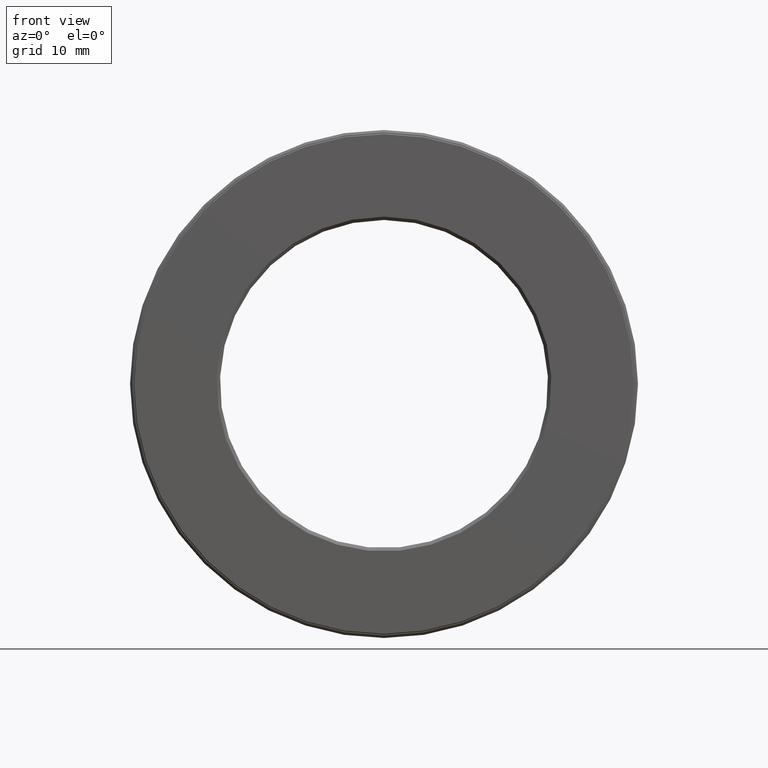
[diagram: clean part render]
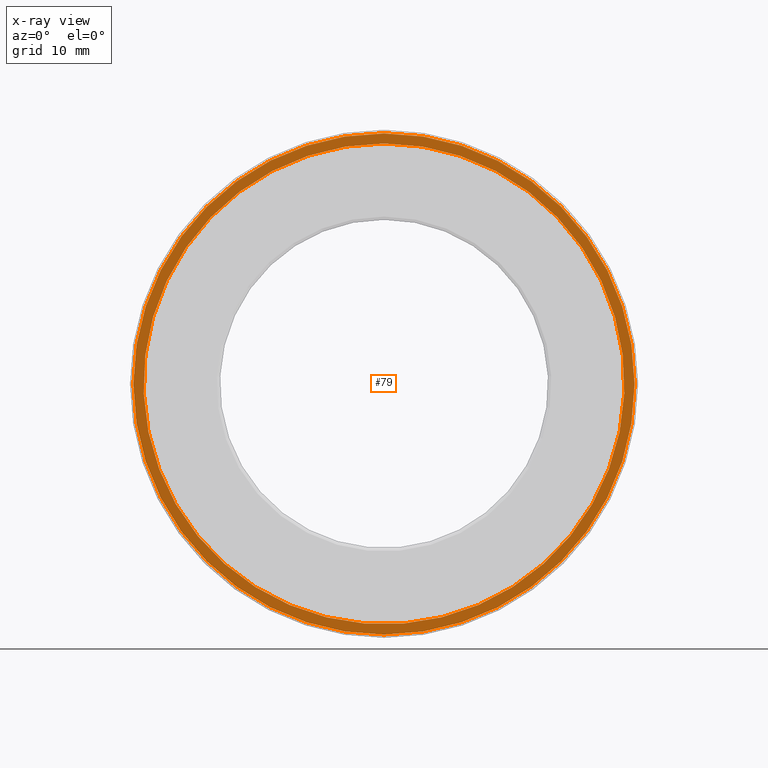
[diagram: x-ray — body ghosted, one internal face saturated and labeled with its STEP entity id]
A machine part, front view, then the same camera in x-ray: the body is ghosted and one INTERNAL B-rep face — a face not visible from any outside direction — is saturated and labeled: STEP entity #79.
In plain terms, the highlighted planar face has unit normal (-0, 1, 0).
Its self-contained STEP definition (entity closure, byte-faithful):
#26 = DIRECTION ( 'NONE',  ( -0.0000000000000000000, 1.000000000000000000, -0.0000000000000000000 ) ) ;
#32 = AXIS2_PLACEMENT_3D ( 'NONE', #307, #26, #208 ) ;
#53 = CARTESIAN_POINT ( 'NONE',  ( 0.0000000000000000000, 0.7774999999999998600, 1.420000000000000200 ) ) ;
#79 = ADVANCED_FACE ( 'NONE', ( #406, #499 ), #562, .F. ) ;
#107 = EDGE_CURVE ( 'NONE', #160, #160, #578, .T. ) ;
#126 = ORIENTED_EDGE ( 'NONE', *, *, #107, .F. ) ;
#131 = DIRECTION ( 'NONE',  ( -0.0000000000000000000, 1.000000000000000000, -0.0000000000000000000 ) ) ;
#160 = VERTEX_POINT ( 'NONE', #523 ) ;
#161 = ORIENTED_EDGE ( 'NONE', *, *, #310, .T. ) ;
#176 = CIRCLE ( 'NONE', #32, 1.420000000000000200 ) ;
#177 = DIRECTION ( 'NONE',  ( -0.0000000000000000000, 1.000000000000000000, 0.0000000000000000000 ) ) ;
#208 = DIRECTION ( 'NONE',  ( 0.0000000000000000000, 0.0000000000000000000, 1.000000000000000000 ) ) ;
#238 = EDGE_LOOP ( 'NONE', ( #161 ) ) ;
#255 = EDGE_LOOP ( 'NONE', ( #126 ) ) ;
#286 = DIRECTION ( 'NONE',  ( 0.0000000000000000000, 0.0000000000000000000, 1.000000000000000000 ) ) ;
#307 = CARTESIAN_POINT ( 'NONE',  ( 0.0000000000000000000, 0.7774999999999998600, 0.0000000000000000000 ) ) ;
#310 = EDGE_CURVE ( 'NONE', #422, #422, #176, .T. ) ;
#332 = CARTESIAN_POINT ( 'NONE',  ( 0.0000000000000000000, 0.7774999999999998600, 0.0000000000000000000 ) ) ;
#369 = AXIS2_PLACEMENT_3D ( 'NONE', #332, #131, #419 ) ;
#406 = FACE_OUTER_BOUND ( 'NONE', #255, .T. ) ;
#419 = DIRECTION ( 'NONE',  ( 0.0000000000000000000, 0.0000000000000000000, 1.000000000000000000 ) ) ;
#422 = VERTEX_POINT ( 'NONE', #53 ) ;
#486 = AXIS2_PLACEMENT_3D ( 'NONE', #514, #177, #286 ) ;
#499 = FACE_BOUND ( 'NONE', #238, .T. ) ;
#514 = CARTESIAN_POINT ( 'NONE',  ( 0.0000000000000000000, 0.7774999999999998600, 0.0000000000000000000 ) ) ;
#523 = CARTESIAN_POINT ( 'NONE',  ( 0.0000000000000000000, 0.7774999999999998600, 1.480000000000000000 ) ) ;
#562 = PLANE ( 'NONE',  #486 ) ;
#578 = CIRCLE ( 'NONE', #369, 1.480000000000000000 ) ;